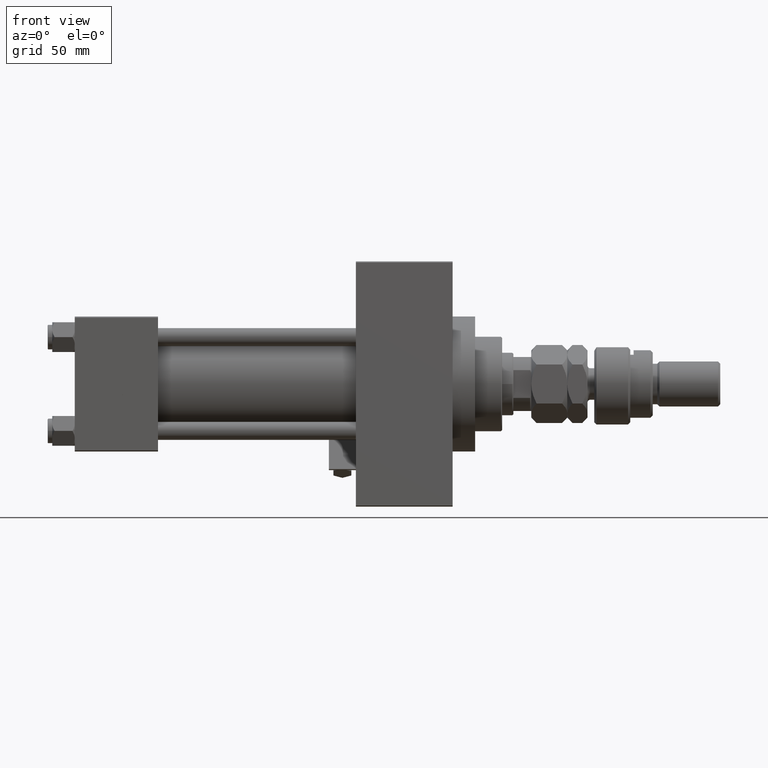
[diagram: clean part render]
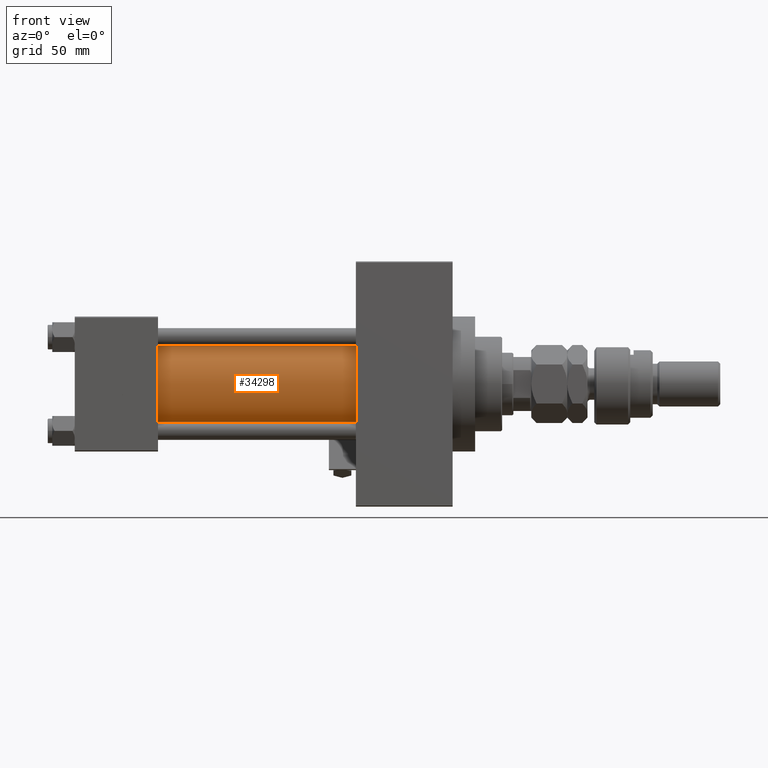
[diagram: same view with one face highlighted and labeled with its STEP entity id]
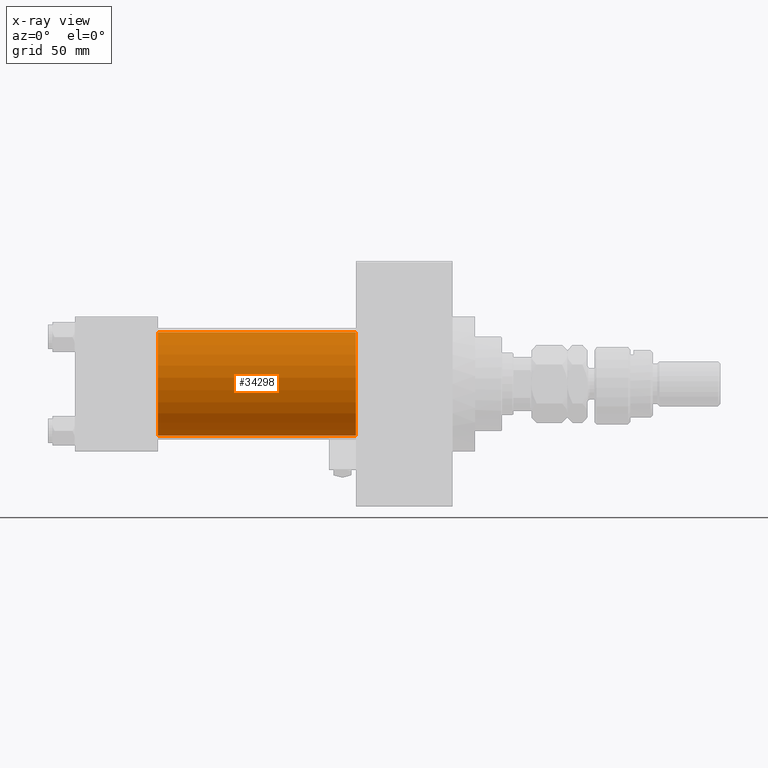
[diagram: x-ray of the same camera — body ghosted, the highlighted face saturated]
A machine part, front view. The second image highlights one B-rep face of the part: STEP entity #34298.
The next image is the same camera in x-ray: the body ghosted, the highlighted face saturated — about 0% of this face is hidden behind the body in this view.
In plain terms, the highlighted cylindrical surface (partial cylindrical patch) has radius 23 mm, axis along (-1, -0, -0).
Its self-contained STEP definition (entity closure, byte-faithful):
#3374 = LINE ( 'NONE', #20157, #10102 ) ;
#5182 = VERTEX_POINT ( 'NONE', #35435 ) ;
#6355 = CARTESIAN_POINT ( 'NONE',  ( 125.0000000000000000, -2.602085213965210642E-15, 0.000000000000000000 ) ) ;
#7973 = DIRECTION ( 'NONE',  ( -1.000000000000000000, -0.000000000000000000, -0.000000000000000000 ) ) ;
#10102 = VECTOR ( 'NONE', #52825, 1000.000000000000000 ) ;
#11839 = EDGE_CURVE ( 'NONE', #44563, #52365, #25943, .T. ) ;
#11948 = VERTEX_POINT ( 'NONE', #25011 ) ;
#13597 = AXIS2_PLACEMENT_3D ( 'NONE', #40125, #36079, #26651 ) ;
#14494 = DIRECTION ( 'NONE',  ( 0.000000000000000000, 0.000000000000000000, 1.000000000000000000 ) ) ;
#15565 = DIRECTION ( 'NONE',  ( 1.000000000000000000, -0.000000000000000000, 0.000000000000000000 ) ) ;
#20026 = CARTESIAN_POINT ( 'NONE',  ( 37.00000000000000711, -2.602085213965210642E-15, 23.00000000000000000 ) ) ;
#20157 = CARTESIAN_POINT ( 'NONE',  ( 125.0000000000000000, -2.602085213965210642E-15, 23.00000000000000000 ) ) ;
#25011 = CARTESIAN_POINT ( 'NONE',  ( 125.0000000000000000, 2.146024240737016609E-16, -23.00000000000000000 ) ) ;
#25943 = CIRCLE ( 'NONE', #36257, 23.00000000000000000 ) ;
#26651 = DIRECTION ( 'NONE',  ( 0.000000000000000000, 0.000000000000000000, -1.000000000000000000 ) ) ;
#27481 = EDGE_LOOP ( 'NONE', ( #33867, #28136, #35093, #49018 ) ) ;
#28136 = ORIENTED_EDGE ( 'NONE', *, *, #33397, .F. ) ;
#28524 = LINE ( 'NONE', #44991, #44644 ) ;
#32197 = CARTESIAN_POINT ( 'NONE',  ( 37.00000000000000711, 2.146024240737016609E-16, -23.00000000000000000 ) ) ;
#33397 = EDGE_CURVE ( 'NONE', #5182, #11948, #43771, .T. ) ;
#33867 = ORIENTED_EDGE ( 'NONE', *, *, #39601, .F. ) ;
#34298 = ADVANCED_FACE ( 'NONE', ( #51757 ), #43644, .T. ) ;
#35093 = ORIENTED_EDGE ( 'NONE', *, *, #39557, .T. ) ;
#35435 = CARTESIAN_POINT ( 'NONE',  ( 125.0000000000000000, -2.602085213965210642E-15, 23.00000000000000000 ) ) ;
#35811 = DIRECTION ( 'NONE',  ( 0.000000000000000000, 0.000000000000000000, 1.000000000000000000 ) ) ;
#36079 = DIRECTION ( 'NONE',  ( 1.000000000000000000, 0.000000000000000000, 0.000000000000000000 ) ) ;
#36257 = AXIS2_PLACEMENT_3D ( 'NONE', #36346, #15565, #35811 ) ;
#36346 = CARTESIAN_POINT ( 'NONE',  ( 37.00000000000000711, -2.602085213965210642E-15, 0.000000000000000000 ) ) ;
#39557 = EDGE_CURVE ( 'NONE', #5182, #44563, #3374, .T. ) ;
#39601 = EDGE_CURVE ( 'NONE', #11948, #52365, #28524, .T. ) ;
#40125 = CARTESIAN_POINT ( 'NONE',  ( 125.0000000000000000, -2.602085213965210642E-15, 0.000000000000000000 ) ) ;
#43644 = CYLINDRICAL_SURFACE ( 'NONE', #47292, 23.00000000000000000 ) ;
#43771 = CIRCLE ( 'NONE', #13597, 23.00000000000000000 ) ;
#44563 = VERTEX_POINT ( 'NONE', #20026 ) ;
#44644 = VECTOR ( 'NONE', #7973, 1000.000000000000000 ) ;
#44991 = CARTESIAN_POINT ( 'NONE',  ( 125.0000000000000000, 2.146024240737016609E-16, -23.00000000000000000 ) ) ;
#47292 = AXIS2_PLACEMENT_3D ( 'NONE', #6355, #47711, #14494 ) ;
#47711 = DIRECTION ( 'NONE',  ( -1.000000000000000000, -0.000000000000000000, -0.000000000000000000 ) ) ;
#49018 = ORIENTED_EDGE ( 'NONE', *, *, #11839, .T. ) ;
#51757 = FACE_OUTER_BOUND ( 'NONE', #27481, .T. ) ;
#52365 = VERTEX_POINT ( 'NONE', #32197 ) ;
#52825 = DIRECTION ( 'NONE',  ( -1.000000000000000000, -0.000000000000000000, -0.000000000000000000 ) ) ;